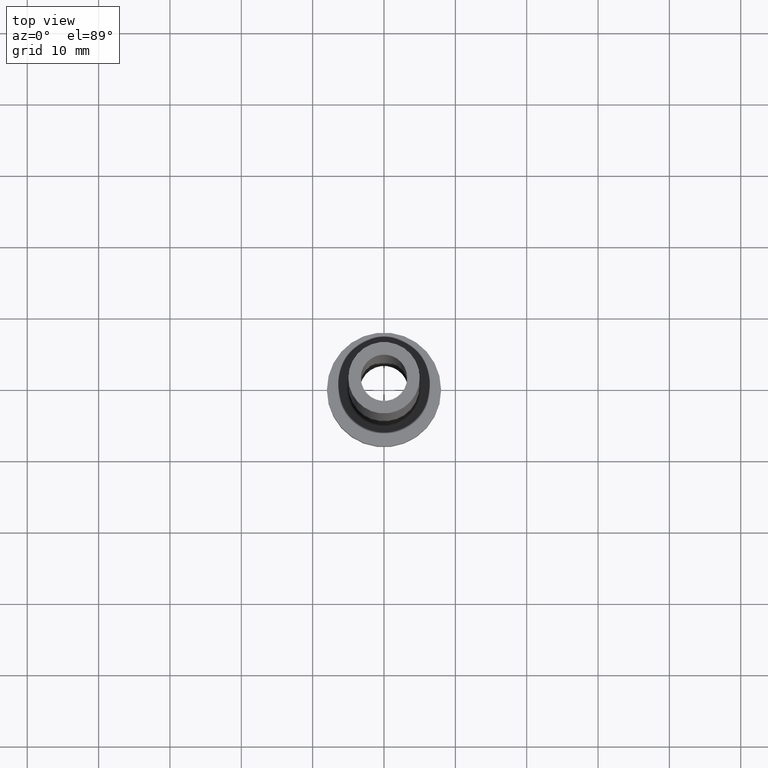
[diagram: clean part render]
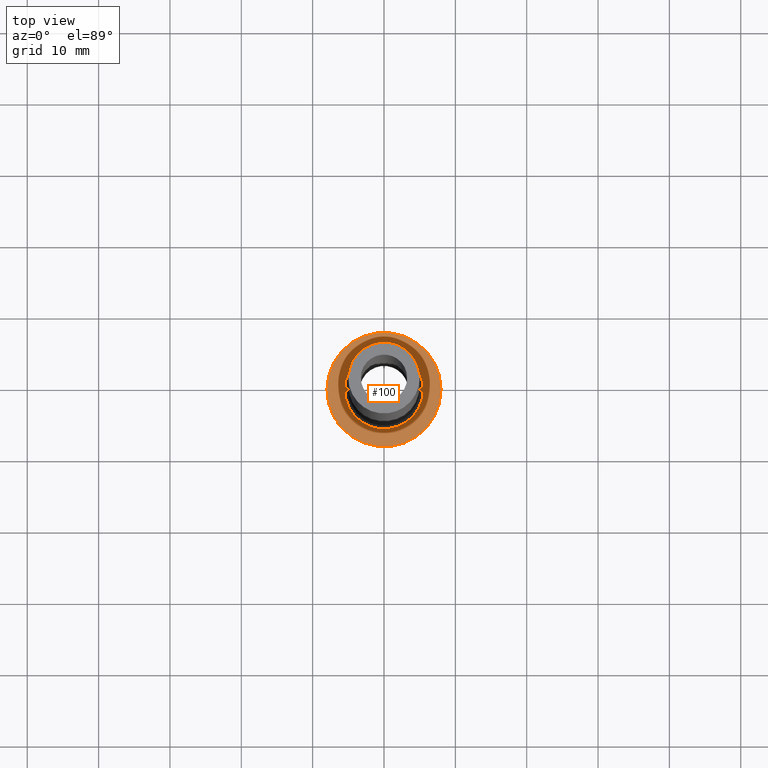
[diagram: same view with one face highlighted and labeled with its STEP entity id]
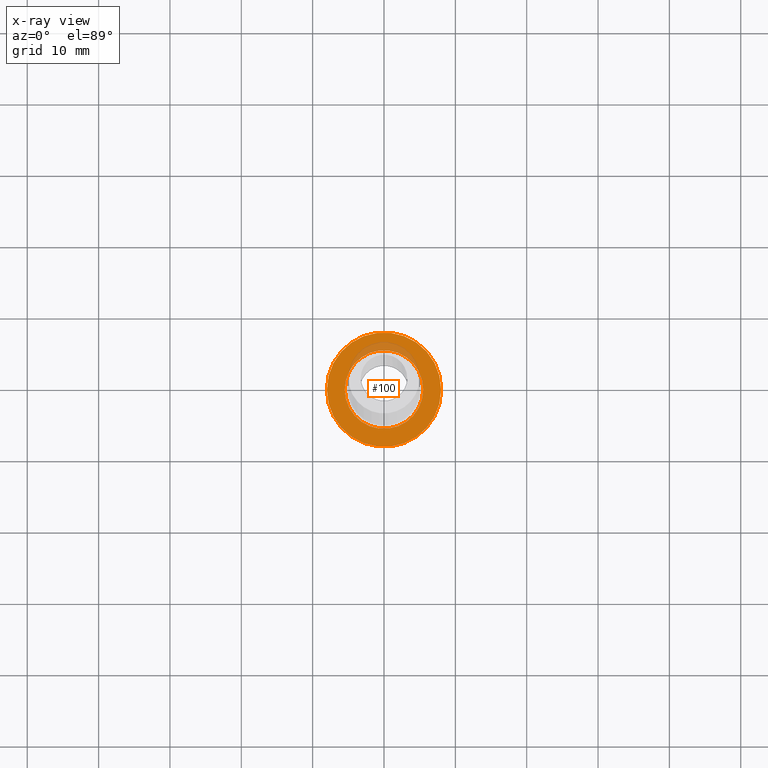
[diagram: x-ray of the same camera — body ghosted, the highlighted face saturated]
A machine part, top view. The second image highlights one B-rep face of the part: STEP entity #100.
The next image is the same camera in x-ray: the body ghosted, the highlighted face saturated — about 9% of this face is hidden behind the body in this view.
In plain terms, the highlighted planar face has unit normal (0, 0, 1).
Its self-contained STEP definition (entity closure, byte-faithful):
#18 = CARTESIAN_POINT ( 'NONE',  ( 0.000000000000000000, 0.000000000000000000, 5.000000000000000000 ) ) ;
#46 = CARTESIAN_POINT ( 'NONE',  ( 0.000000000000000000, 0.000000000000000000, 5.000000000000000000 ) ) ;
#49 = CIRCLE ( 'NONE', #108, 8.000000000000000000 ) ;
#56 = ORIENTED_EDGE ( 'NONE', *, *, #107, .T. ) ;
#57 = EDGE_CURVE ( 'NONE', #310, #231, #49, .T. ) ;
#76 = CARTESIAN_POINT ( 'NONE',  ( 0.000000000000000000, 0.000000000000000000, 5.000000000000000000 ) ) ;
#88 = DIRECTION ( 'NONE',  ( 1.000000000000000000, 0.000000000000000000, 0.000000000000000000 ) ) ;
#92 = FACE_BOUND ( 'NONE', #195, .T. ) ;
#93 = CARTESIAN_POINT ( 'NONE',  ( 5.500000000000000000, 0.000000000000000000, 5.000000000000002665 ) ) ;
#100 = ADVANCED_FACE ( 'NONE', ( #92, #315 ), #412, .T. ) ;
#101 = AXIS2_PLACEMENT_3D ( 'NONE', #18, #309, #119 ) ;
#107 = EDGE_CURVE ( 'NONE', #231, #310, #144, .T. ) ;
#108 = AXIS2_PLACEMENT_3D ( 'NONE', #431, #111, #398 ) ;
#111 = DIRECTION ( 'NONE',  ( 0.000000000000000000, 0.000000000000000000, 1.000000000000000000 ) ) ;
#117 = AXIS2_PLACEMENT_3D ( 'NONE', #194, #266, #88 ) ;
#119 = DIRECTION ( 'NONE',  ( 1.000000000000000000, 0.000000000000000000, -0.000000000000000000 ) ) ;
#144 = CIRCLE ( 'NONE', #117, 8.000000000000000000 ) ;
#158 = CARTESIAN_POINT ( 'NONE',  ( -5.500000000000000000, 6.735557395310442023E-16, 5.000000000000002665 ) ) ;
#182 = AXIS2_PLACEMENT_3D ( 'NONE', #76, #288, #295 ) ;
#183 = EDGE_LOOP ( 'NONE', ( #304, #56 ) ) ;
#187 = VERTEX_POINT ( 'NONE', #93 ) ;
#194 = CARTESIAN_POINT ( 'NONE',  ( 0.000000000000000000, 0.000000000000000000, 5.000000000000000000 ) ) ;
#195 = EDGE_LOOP ( 'NONE', ( #260, #380 ) ) ;
#200 = AXIS2_PLACEMENT_3D ( 'NONE', #46, #261, #399 ) ;
#206 = CIRCLE ( 'NONE', #200, 5.500000000000000000 ) ;
#231 = VERTEX_POINT ( 'NONE', #391 ) ;
#248 = EDGE_CURVE ( 'NONE', #187, #447, #382, .T. ) ;
#260 = ORIENTED_EDGE ( 'NONE', *, *, #248, .T. ) ;
#261 = DIRECTION ( 'NONE',  ( -0.000000000000000000, -0.000000000000000000, -1.000000000000000000 ) ) ;
#266 = DIRECTION ( 'NONE',  ( 0.000000000000000000, 0.000000000000000000, 1.000000000000000000 ) ) ;
#288 = DIRECTION ( 'NONE',  ( -0.000000000000000000, -0.000000000000000000, -1.000000000000000000 ) ) ;
#295 = DIRECTION ( 'NONE',  ( 1.000000000000000000, 0.000000000000000000, 0.000000000000000000 ) ) ;
#304 = ORIENTED_EDGE ( 'NONE', *, *, #57, .T. ) ;
#309 = DIRECTION ( 'NONE',  ( 0.000000000000000000, 0.000000000000000000, 1.000000000000000000 ) ) ;
#310 = VERTEX_POINT ( 'NONE', #335 ) ;
#315 = FACE_OUTER_BOUND ( 'NONE', #183, .T. ) ;
#335 = CARTESIAN_POINT ( 'NONE',  ( -8.000000000000000000, 0.000000000000000000, 5.000000000000000000 ) ) ;
#380 = ORIENTED_EDGE ( 'NONE', *, *, #460, .T. ) ;
#382 = CIRCLE ( 'NONE', #182, 5.500000000000000000 ) ;
#391 = CARTESIAN_POINT ( 'NONE',  ( 8.000000000000000000, 9.797174393178825657E-16, 5.000000000000000000 ) ) ;
#398 = DIRECTION ( 'NONE',  ( 1.000000000000000000, 0.000000000000000000, 0.000000000000000000 ) ) ;
#399 = DIRECTION ( 'NONE',  ( 1.000000000000000000, 0.000000000000000000, 0.000000000000000000 ) ) ;
#412 = PLANE ( 'NONE',  #101 ) ;
#431 = CARTESIAN_POINT ( 'NONE',  ( 0.000000000000000000, 0.000000000000000000, 5.000000000000000000 ) ) ;
#447 = VERTEX_POINT ( 'NONE', #158 ) ;
#460 = EDGE_CURVE ( 'NONE', #447, #187, #206, .T. ) ;